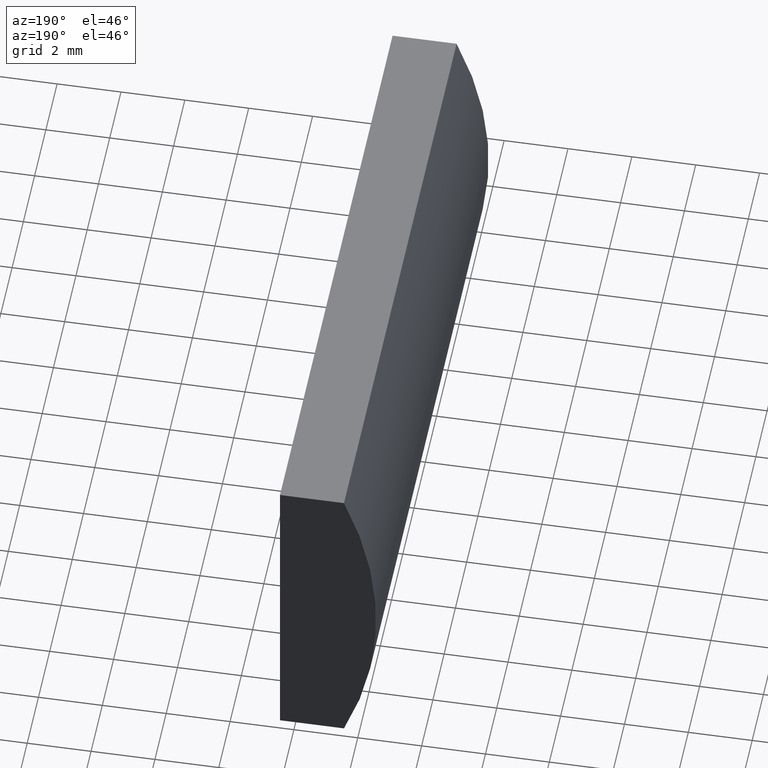
[diagram: clean part render]
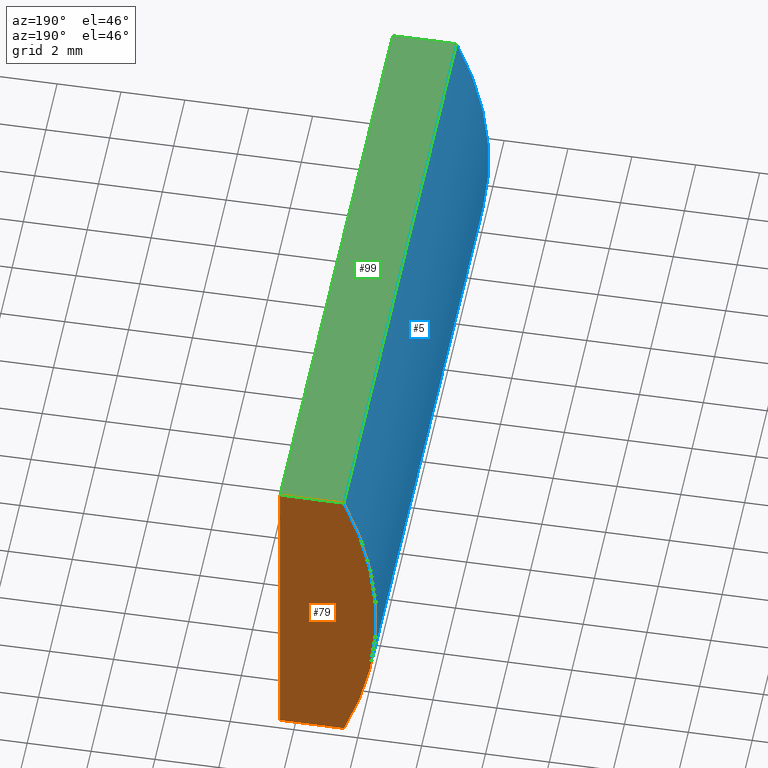
[diagram: same view with three faces highlighted in distinct colors, each labeled with its STEP entity id]
A machine part, auxiliary view with three faces highlighted in distinct colors.
Their STEP definitions:

[orange] entity #79 — the highlighted planar face has unit normal (0, 1, 0).
#7 = FACE_OUTER_BOUND ( 'NONE', #133, .T. ) ;
#10 = ORIENTED_EDGE ( 'NONE', *, *, #64, .T. ) ;
#11 = VERTEX_POINT ( 'NONE', #94 ) ;
#17 = VERTEX_POINT ( 'NONE', #185 ) ;
#22 = CARTESIAN_POINT ( 'NONE',  ( -5.564795665148737100, 20.00000000000000000, -5.000000000000000000 ) ) ;
#30 = VECTOR ( 'NONE', #86, 1000.000000000000000 ) ;
#44 = ORIENTED_EDGE ( 'NONE', *, *, #51, .T. ) ;
#47 = AXIS2_PLACEMENT_3D ( 'NONE', #200, #50, #76 ) ;
#48 = CARTESIAN_POINT ( 'NONE',  ( -7.568926660739147200, 20.00000000000000000, -5.000000000000000000 ) ) ;
#50 = DIRECTION ( 'NONE',  ( 0.0000000000000000000, 1.000000000000000000, 0.0000000000000000000 ) ) ;
#51 = EDGE_CURVE ( 'NONE', #11, #92, #119, .T. ) ;
#52 = VECTOR ( 'NONE', #203, 1000.000000000000000 ) ;
#61 = VERTEX_POINT ( 'NONE', #127 ) ;
#64 = EDGE_CURVE ( 'NONE', #17, #61, #115, .T. ) ;
#70 = DIRECTION ( 'NONE',  ( -3.469446951953614200E-016, -0.0000000000000000000, -1.000000000000000000 ) ) ;
#76 = DIRECTION ( 'NONE',  ( 0.0000000000000000000, -0.0000000000000000000, 1.000000000000000000 ) ) ;
#79 = ADVANCED_FACE ( 'NONE', ( #7 ), #151, .T. ) ;
#86 = DIRECTION ( 'NONE',  ( -1.000000000000000000, -0.0000000000000000000, -0.0000000000000000000 ) ) ;
#88 = DIRECTION ( 'NONE',  ( 0.0000000000000000000, 0.0000000000000000000, 1.000000000000000000 ) ) ;
#90 = CARTESIAN_POINT ( 'NONE',  ( -5.564795665148737100, 20.00000000000000000, -5.000000000000000000 ) ) ;
#92 = VERTEX_POINT ( 'NONE', #22 ) ;
#94 = CARTESIAN_POINT ( 'NONE',  ( -5.564795665148733600, 20.00000000000000000, 5.000000000000000000 ) ) ;
#104 = AXIS2_PLACEMENT_3D ( 'NONE', #144, #189, #88 ) ;
#114 = CARTESIAN_POINT ( 'NONE',  ( -7.568926660739147200, 20.00000000000000000, 5.000000000000000000 ) ) ;
#115 = CIRCLE ( 'NONE', #104, 12.93000000000000100 ) ;
#119 = LINE ( 'NONE', #90, #166 ) ;
#127 = CARTESIAN_POINT ( 'NONE',  ( -7.568926660739147200, 20.00000000000000000, 5.000000000000000000 ) ) ;
#133 = EDGE_LOOP ( 'NONE', ( #10, #142, #44, #178 ) ) ;
#142 = ORIENTED_EDGE ( 'NONE', *, *, #150, .T. ) ;
#144 = CARTESIAN_POINT ( 'NONE',  ( 4.355204334851265500, 20.00000000000000000, 4.286263797015675000E-017 ) ) ;
#150 = EDGE_CURVE ( 'NONE', #61, #11, #167, .T. ) ;
#151 = PLANE ( 'NONE',  #47 ) ;
#166 = VECTOR ( 'NONE', #70, 1000.000000000000000 ) ;
#167 = LINE ( 'NONE', #114, #52 ) ;
#178 = ORIENTED_EDGE ( 'NONE', *, *, #192, .T. ) ;
#185 = CARTESIAN_POINT ( 'NONE',  ( -7.568926660739147200, 20.00000000000000000, -5.000000000000000000 ) ) ;
#189 = DIRECTION ( 'NONE',  ( 0.0000000000000000000, 1.000000000000000000, 0.0000000000000000000 ) ) ;
#192 = EDGE_CURVE ( 'NONE', #92, #17, #195, .T. ) ;
#195 = LINE ( 'NONE', #48, #30 ) ;
#200 = CARTESIAN_POINT ( 'NONE',  ( 4.355204334851265500, 20.00000000000000000, 4.286263797015675000E-017 ) ) ;
#203 = DIRECTION ( 'NONE',  ( 1.000000000000000000, 0.0000000000000000000, 0.0000000000000000000 ) ) ;

[blue] entity #5 — the highlighted cylindrical surface (partial cylindrical patch) has radius 12.93 mm, axis along (-0, -1, -0).
#5 = ADVANCED_FACE ( 'NONE', ( #193 ), #18, .T. ) ;
#16 = DIRECTION ( 'NONE',  ( 0.0000000000000000000, 1.000000000000000000, 0.0000000000000000000 ) ) ;
#17 = VERTEX_POINT ( 'NONE', #185 ) ;
#18 = CYLINDRICAL_SURFACE ( 'NONE', #179, 12.93000000000000100 ) ;
#19 = EDGE_LOOP ( 'NONE', ( #137, #152, #123, #161 ) ) ;
#29 = CARTESIAN_POINT ( 'NONE',  ( -7.568926660739147200, 0.0000000000000000000, 5.000000000000000000 ) ) ;
#33 = DIRECTION ( 'NONE',  ( -0.0000000000000000000, -1.000000000000000000, -0.0000000000000000000 ) ) ;
#40 = CARTESIAN_POINT ( 'NONE',  ( 4.355204334851265500, 0.0000000000000000000, 4.286263797015675000E-017 ) ) ;
#55 = EDGE_CURVE ( 'NONE', #17, #128, #132, .T. ) ;
#57 = DIRECTION ( 'NONE',  ( -0.0000000000000000000, -1.000000000000000000, -0.0000000000000000000 ) ) ;
#61 = VERTEX_POINT ( 'NONE', #127 ) ;
#64 = EDGE_CURVE ( 'NONE', #17, #61, #115, .T. ) ;
#66 = DIRECTION ( 'NONE',  ( 0.0000000000000000000, 0.0000000000000000000, -1.000000000000000000 ) ) ;
#75 = CARTESIAN_POINT ( 'NONE',  ( -7.568926660739147200, 20.00000000000000000, 5.000000000000000000 ) ) ;
#88 = DIRECTION ( 'NONE',  ( 0.0000000000000000000, 0.0000000000000000000, 1.000000000000000000 ) ) ;
#89 = DIRECTION ( 'NONE',  ( -0.0000000000000000000, -1.000000000000000000, -0.0000000000000000000 ) ) ;
#97 = CARTESIAN_POINT ( 'NONE',  ( -7.568926660739147200, 20.00000000000000000, -5.000000000000000000 ) ) ;
#104 = AXIS2_PLACEMENT_3D ( 'NONE', #144, #189, #88 ) ;
#107 = EDGE_CURVE ( 'NONE', #61, #148, #170, .T. ) ;
#108 = CARTESIAN_POINT ( 'NONE',  ( 4.355204334851265500, 20.00000000000000000, 4.286263797015675000E-017 ) ) ;
#115 = CIRCLE ( 'NONE', #104, 12.93000000000000100 ) ;
#120 = AXIS2_PLACEMENT_3D ( 'NONE', #40, #16, #168 ) ;
#122 = VECTOR ( 'NONE', #57, 1000.000000000000000 ) ;
#123 = ORIENTED_EDGE ( 'NONE', *, *, #64, .F. ) ;
#127 = CARTESIAN_POINT ( 'NONE',  ( -7.568926660739147200, 20.00000000000000000, 5.000000000000000000 ) ) ;
#128 = VERTEX_POINT ( 'NONE', #183 ) ;
#132 = LINE ( 'NONE', #97, #122 ) ;
#135 = CIRCLE ( 'NONE', #120, 12.93000000000000100 ) ;
#137 = ORIENTED_EDGE ( 'NONE', *, *, #173, .T. ) ;
#144 = CARTESIAN_POINT ( 'NONE',  ( 4.355204334851265500, 20.00000000000000000, 4.286263797015675000E-017 ) ) ;
#148 = VERTEX_POINT ( 'NONE', #29 ) ;
#152 = ORIENTED_EDGE ( 'NONE', *, *, #107, .F. ) ;
#161 = ORIENTED_EDGE ( 'NONE', *, *, #55, .T. ) ;
#163 = VECTOR ( 'NONE', #89, 1000.000000000000000 ) ;
#168 = DIRECTION ( 'NONE',  ( 0.0000000000000000000, 0.0000000000000000000, 1.000000000000000000 ) ) ;
#170 = LINE ( 'NONE', #75, #163 ) ;
#173 = EDGE_CURVE ( 'NONE', #128, #148, #135, .T. ) ;
#179 = AXIS2_PLACEMENT_3D ( 'NONE', #108, #33, #66 ) ;
#183 = CARTESIAN_POINT ( 'NONE',  ( -7.568926660739147200, 0.0000000000000000000, -5.000000000000000000 ) ) ;
#185 = CARTESIAN_POINT ( 'NONE',  ( -7.568926660739147200, 20.00000000000000000, -5.000000000000000000 ) ) ;
#189 = DIRECTION ( 'NONE',  ( 0.0000000000000000000, 1.000000000000000000, 0.0000000000000000000 ) ) ;
#193 = FACE_OUTER_BOUND ( 'NONE', #19, .T. ) ;

[green] entity #99 — the highlighted planar face has unit normal (0, 0, -1).
#2 = EDGE_CURVE ( 'NONE', #11, #69, #25, .T. ) ;
#3 = EDGE_LOOP ( 'NONE', ( #35, #84, #134, #34 ) ) ;
#11 = VERTEX_POINT ( 'NONE', #94 ) ;
#14 = VECTOR ( 'NONE', #136, 1000.000000000000000 ) ;
#25 = LINE ( 'NONE', #42, #14 ) ;
#29 = CARTESIAN_POINT ( 'NONE',  ( -7.568926660739147200, 0.0000000000000000000, 5.000000000000000000 ) ) ;
#34 = ORIENTED_EDGE ( 'NONE', *, *, #107, .T. ) ;
#35 = ORIENTED_EDGE ( 'NONE', *, *, #147, .T. ) ;
#42 = CARTESIAN_POINT ( 'NONE',  ( -5.564795665148733600, 20.00000000000000000, 5.000000000000000000 ) ) ;
#52 = VECTOR ( 'NONE', #203, 1000.000000000000000 ) ;
#61 = VERTEX_POINT ( 'NONE', #127 ) ;
#69 = VERTEX_POINT ( 'NONE', #96 ) ;
#75 = CARTESIAN_POINT ( 'NONE',  ( -7.568926660739147200, 20.00000000000000000, 5.000000000000000000 ) ) ;
#77 = CARTESIAN_POINT ( 'NONE',  ( -7.568926660739147200, 20.00000000000000000, 5.000000000000000000 ) ) ;
#84 = ORIENTED_EDGE ( 'NONE', *, *, #2, .F. ) ;
#89 = DIRECTION ( 'NONE',  ( -0.0000000000000000000, -1.000000000000000000, -0.0000000000000000000 ) ) ;
#93 = LINE ( 'NONE', #153, #159 ) ;
#94 = CARTESIAN_POINT ( 'NONE',  ( -5.564795665148733600, 20.00000000000000000, 5.000000000000000000 ) ) ;
#96 = CARTESIAN_POINT ( 'NONE',  ( -5.564795665148733600, 0.0000000000000000000, 5.000000000000000000 ) ) ;
#98 = AXIS2_PLACEMENT_3D ( 'NONE', #77, #171, #175 ) ;
#99 = ADVANCED_FACE ( 'NONE', ( #198 ), #118, .F. ) ;
#107 = EDGE_CURVE ( 'NONE', #61, #148, #170, .T. ) ;
#114 = CARTESIAN_POINT ( 'NONE',  ( -7.568926660739147200, 20.00000000000000000, 5.000000000000000000 ) ) ;
#118 = PLANE ( 'NONE',  #98 ) ;
#127 = CARTESIAN_POINT ( 'NONE',  ( -7.568926660739147200, 20.00000000000000000, 5.000000000000000000 ) ) ;
#134 = ORIENTED_EDGE ( 'NONE', *, *, #150, .F. ) ;
#136 = DIRECTION ( 'NONE',  ( -0.0000000000000000000, -1.000000000000000000, -0.0000000000000000000 ) ) ;
#147 = EDGE_CURVE ( 'NONE', #148, #69, #93, .T. ) ;
#148 = VERTEX_POINT ( 'NONE', #29 ) ;
#150 = EDGE_CURVE ( 'NONE', #61, #11, #167, .T. ) ;
#153 = CARTESIAN_POINT ( 'NONE',  ( -7.568926660739147200, 0.0000000000000000000, 5.000000000000000000 ) ) ;
#159 = VECTOR ( 'NONE', #172, 1000.000000000000000 ) ;
#163 = VECTOR ( 'NONE', #89, 1000.000000000000000 ) ;
#167 = LINE ( 'NONE', #114, #52 ) ;
#170 = LINE ( 'NONE', #75, #163 ) ;
#171 = DIRECTION ( 'NONE',  ( 0.0000000000000000000, 0.0000000000000000000, -1.000000000000000000 ) ) ;
#172 = DIRECTION ( 'NONE',  ( 1.000000000000000000, 0.0000000000000000000, 0.0000000000000000000 ) ) ;
#175 = DIRECTION ( 'NONE',  ( -1.000000000000000000, 0.0000000000000000000, -0.0000000000000000000 ) ) ;
#198 = FACE_OUTER_BOUND ( 'NONE', #3, .T. ) ;
#203 = DIRECTION ( 'NONE',  ( 1.000000000000000000, 0.0000000000000000000, 0.0000000000000000000 ) ) ;